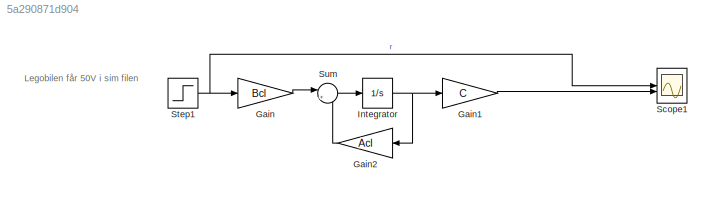
MODEL slx_5a290871d904
KIND model
CONFIG AbsTol = auto
CONFIG EnableMultiTasking = off
CONFIG FixedStep = auto
CONFIG MaxStep = auto
CONFIG MinStep = auto
CONFIG RelTol = 1e-3
CONFIG SampleTimeConstraint = Unconstrained
CONFIG SolverName = VariableStepAuto
CONFIG StartTime = 0.0
CONFIG StopTime = 10.0
BLOCK [Gain] Gain
  Gain = Bcl
  Multiplication = Matrix(K*u)
BLOCK [Gain] Gain1
  Gain = C
  Multiplication = Matrix(K*u)
BLOCK [Gain] Gain2
  Gain = Acl
  Multiplication = Matrix(K*u)
  NameLocation = top
BLOCK [Integrator] Integrator
BLOCK [Scope] Scope1
  Floating = off
  NumInputPorts = 2
  ScopeSpecificationString = Simulink.scopes.TimeScopeBlockCfg('CurrentConfiguration', extmgr.ConfigurationSet(extmgr.Configuration('Core','General UI',true),extmgr.Configuration('Core','Source UI',true),extmgr.Configuration('Sources','WiredSimulink',true,'DataLoggingVariableName','ScopeData1'),extmgr.Configuration('Visuals','Time Domain',true,'SerializedDisplays',{struct('MinYLimReal','-7.49074','MaxYLimReal','67.4167','YLab...<+1512ch>
BLOCK [Step] Step1
  After = 50
  SampleTime = 0
BLOCK [Sum] Sum
  Inputs = |++
ANNOTATION (root): Legobilen får 50V i sim filen
LINE Gain1:1 -> Scope1:2
LINE Gain2:1 -> Sum:2
LINE Gain:1 -> Sum:1
NET Integrator:1 -> Gain1:1, Gain2:1
NET Step1:1 -> Gain:1, Scope1:1
LINE Sum:1 -> Integrator:1
note: NET lines group one-source signal fan-out (src -> all destinations, sorted); 1:1 wires keep LINE
